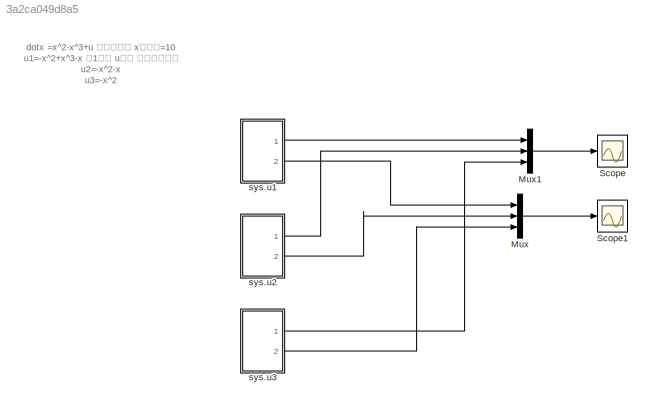
MODEL slx_3a2ca049d8a5
KIND model
CONFIG AbsTol = auto
CONFIG EnableMultiTasking = off
CONFIG FixedStep = auto
CONFIG MaxStep = auto
CONFIG MinStep = auto
CONFIG RelTol = 1e-3
CONFIG SampleTimeConstraint = Unconstrained
CONFIG SolverName = VariableStepAuto
CONFIG StartTime = 0.0
CONFIG StopTime = 10.0
BLOCK [Mux] Mux
  DisplayOption = bar
  Inputs = 3
  Ports = [3, 1]
BLOCK [Mux] Mux1
  DisplayOption = bar
  Inputs = 3
  Ports = [3, 1]
BLOCK [Scope] Scope
  Floating = off
  NumInputPorts = 1
  Ports = [1]
  ScopeSpecificationString = Simulink.scopes.TimeScopeBlockCfg('CurrentConfiguration', extmgr.ConfigurationSet(extmgr.Configuration('Core','General UI',true),extmgr.Configuration('Core','Source UI',true),extmgr.Configuration('Sources','WiredSimulink',true),extmgr.Configuration('Visuals','Time Domain',true,'SerializedDisplays',{struct('MinYLimReal','-1.24995','MaxYLimReal','11.24999','YLabelReal','','MinYLimMag','0.00000','Max...<+1389ch>
BLOCK [Scope] Scope1
  Floating = off
  NumInputPorts = 1
  Ports = [1]
  ScopeSpecificationString = Simulink.scopes.TimeScopeBlockCfg('CurrentConfiguration', extmgr.ConfigurationSet(extmgr.Configuration('Core','General UI',true),extmgr.Configuration('Core','Source UI',true),extmgr.Configuration('Sources','WiredSimulink',true,'DataLoggingVariableName','ScopeData1'),extmgr.Configuration('Visuals','Time Domain',true,'SerializedDisplays',{struct('MinYLimReal','-235.00000','MaxYLimReal','1015.00000',...<+1437ch>
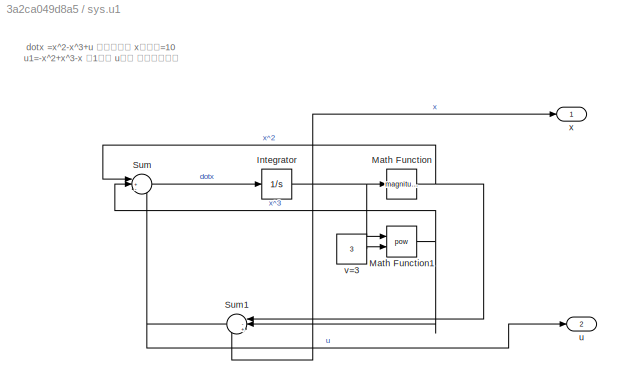
BLOCK [SubSystem] sys.u1
  Ports = [0, 2]
  RequestExecContextInheritance = off
BLOCK [Integrator] sys.u1/Integrator
  InitialCondition = 10
  Ports = [1, 1]
BLOCK [Math] sys.u1/Math Function
  Operator = magnitude^2
  Ports = [1, 1]
BLOCK [Math] sys.u1/Math Function1
  Operator = pow
  Ports = [2, 1]
BLOCK [Sum] sys.u1/Sum
  Inputs = |+-+
  Ports = [3, 1]
BLOCK [Sum] sys.u1/Sum1
  Inputs = |-+-
  Ports = [3, 1]
BLOCK [Outport] sys.u1/u
  Port = 2
BLOCK [Constant] sys.u1/v=3
  Value = 3
BLOCK [Outport] sys.u1/x
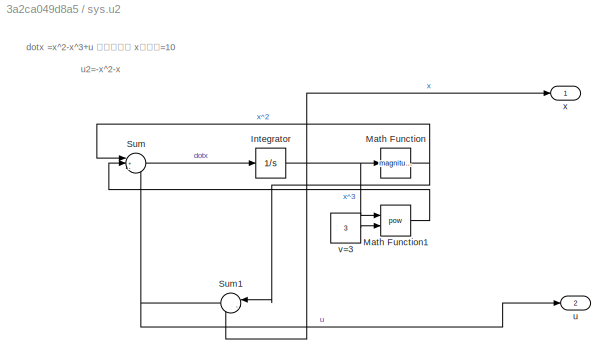
BLOCK [SubSystem] sys.u2
  Ports = [0, 2]
  RequestExecContextInheritance = off
BLOCK [Integrator] sys.u2/Integrator
  InitialCondition = 10
  Ports = [1, 1]
BLOCK [Math] sys.u2/Math Function
  Operator = magnitude^2
  Ports = [1, 1]
BLOCK [Math] sys.u2/Math Function1
  Operator = pow
  Ports = [2, 1]
BLOCK [Sum] sys.u2/Sum
  Inputs = |+-+
  Ports = [3, 1]
BLOCK [Sum] sys.u2/Sum1
  Inputs = |--
  Ports = [2, 1]
BLOCK [Outport] sys.u2/u
  Port = 2
BLOCK [Constant] sys.u2/v=3
  Value = 3
BLOCK [Outport] sys.u2/x
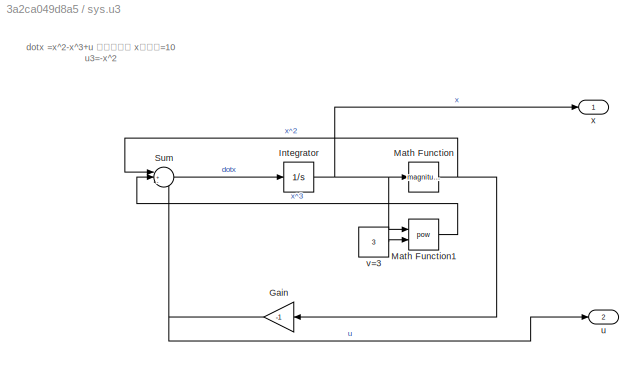
BLOCK [SubSystem] sys.u3
  Ports = [0, 2]
  RequestExecContextInheritance = off
BLOCK [Gain] sys.u3/Gain
  Gain = -1
BLOCK [Integrator] sys.u3/Integrator
  InitialCondition = 10
  Ports = [1, 1]
BLOCK [Math] sys.u3/Math Function
  Operator = magnitude^2
  Ports = [1, 1]
BLOCK [Math] sys.u3/Math Function1
  Operator = pow
  Ports = [2, 1]
BLOCK [Sum] sys.u3/Sum
  Inputs = |+-+
  Ports = [3, 1]
BLOCK [Outport] sys.u3/u
  Port = 2
BLOCK [Constant] sys.u3/v=3
  Value = 3
BLOCK [Outport] sys.u3/x
ANNOTATION (root): dotx =x^2-x^3+u 反馈线性化 x初始值=10 u1=-x^2+x^3-x 用1的话 u很大 能量要求太高 u2=-x^2-x u3=-x^2
ANNOTATION sys.u1: dotx =x^2-x^3+u 反馈线性化 x初始值=10 u1=-x^2+x^3-x 用1的话 u很大 能量要求太高
ANNOTATION sys.u2: dotx =x^2-x^3+u 反馈线性化 x初始值=10 u2=-x^2-x
ANNOTATION sys.u3: dotx =x^2-x^3+u 反馈线性化 x初始值=10 u3=-x^2
LINE Mux1:1 -> Scope:1
LINE Mux:1 -> Scope1:1
NET sys.u1/Integrator:1 -> sys.u1/Math Function1:1, sys.u1/Math Function:1, sys.u1/Sum1:3, sys.u1/x:1
NET sys.u1/Math Function1:1 -> sys.u1/Sum1:2, sys.u1/Sum:2
NET sys.u1/Math Function:1 -> sys.u1/Sum1:1, sys.u1/Sum:1
NET sys.u1/Sum1:1 -> sys.u1/Sum:3, sys.u1/u:1
LINE sys.u1/Sum:1 -> sys.u1/Integrator:1
LINE sys.u1/v=3:1 -> sys.u1/Math Function1:2
LINE sys.u1:1 -> Mux1:1
LINE sys.u1:2 -> Mux:1
NET sys.u2/Integrator:1 -> sys.u2/Math Function1:1, sys.u2/Math Function:1, sys.u2/Sum1:2, sys.u2/x:1
LINE sys.u2/Math Function1:1 -> sys.u2/Sum:2
NET sys.u2/Math Function:1 -> sys.u2/Sum1:1, sys.u2/Sum:1
NET sys.u2/Sum1:1 -> sys.u2/Sum:3, sys.u2/u:1
LINE sys.u2/Sum:1 -> sys.u2/Integrator:1
LINE sys.u2/v=3:1 -> sys.u2/Math Function1:2
LINE sys.u2:1 -> Mux1:2
LINE sys.u2:2 -> Mux:2
NET sys.u3/Gain:1 -> sys.u3/Sum:3, sys.u3/u:1
NET sys.u3/Integrator:1 -> sys.u3/Math Function1:1, sys.u3/Math Function:1, sys.u3/x:1
LINE sys.u3/Math Function1:1 -> sys.u3/Sum:2
NET sys.u3/Math Function:1 -> sys.u3/Gain:1, sys.u3/Sum:1
LINE sys.u3/Sum:1 -> sys.u3/Integrator:1
LINE sys.u3/v=3:1 -> sys.u3/Math Function1:2
LINE sys.u3:1 -> Mux1:3
LINE sys.u3:2 -> Mux:3
note: NET lines group one-source signal fan-out (src -> all destinations, sorted); 1:1 wires keep LINE
